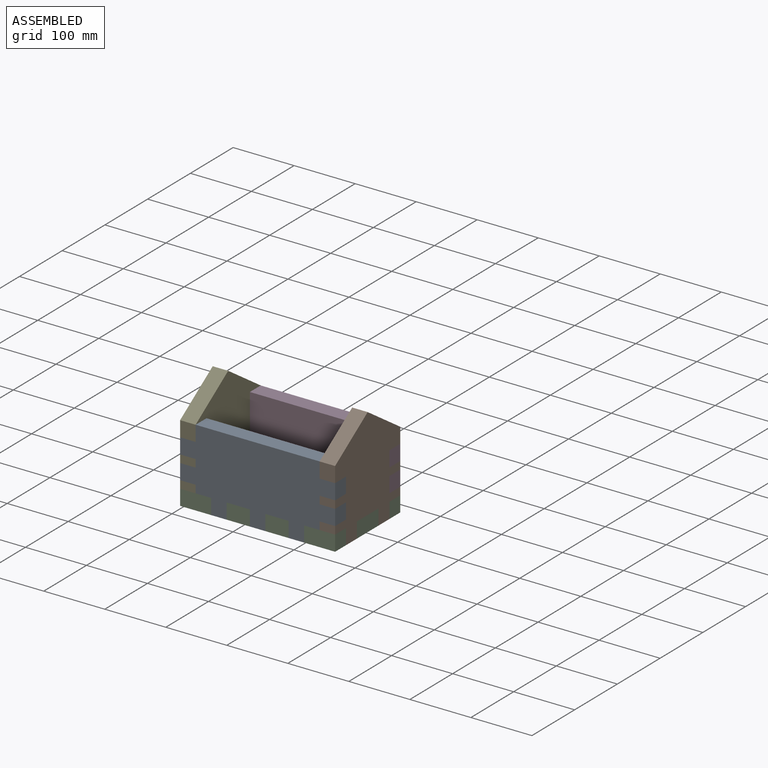
[diagram: assembled view]
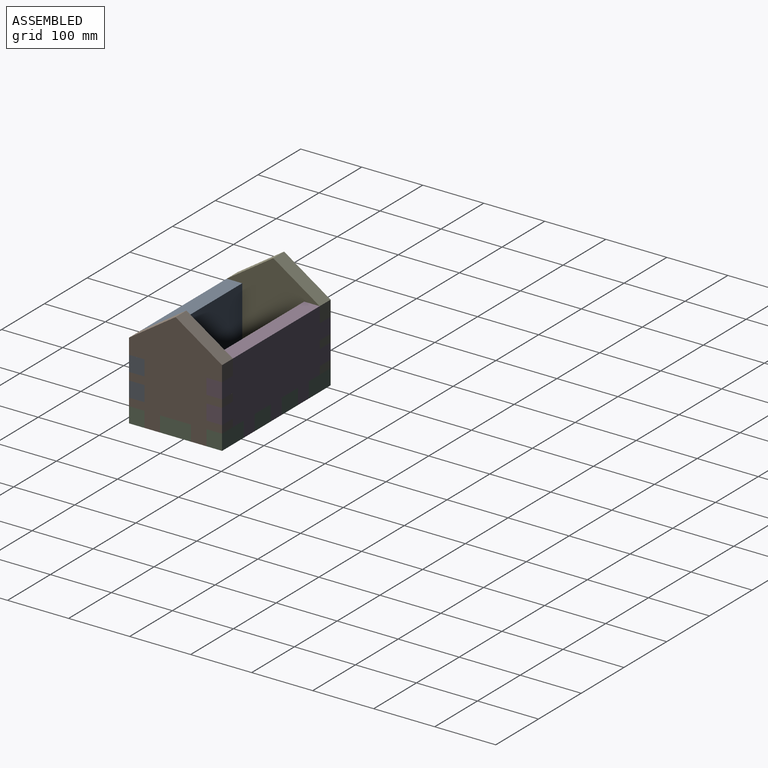
[diagram: assembled view, second angle]
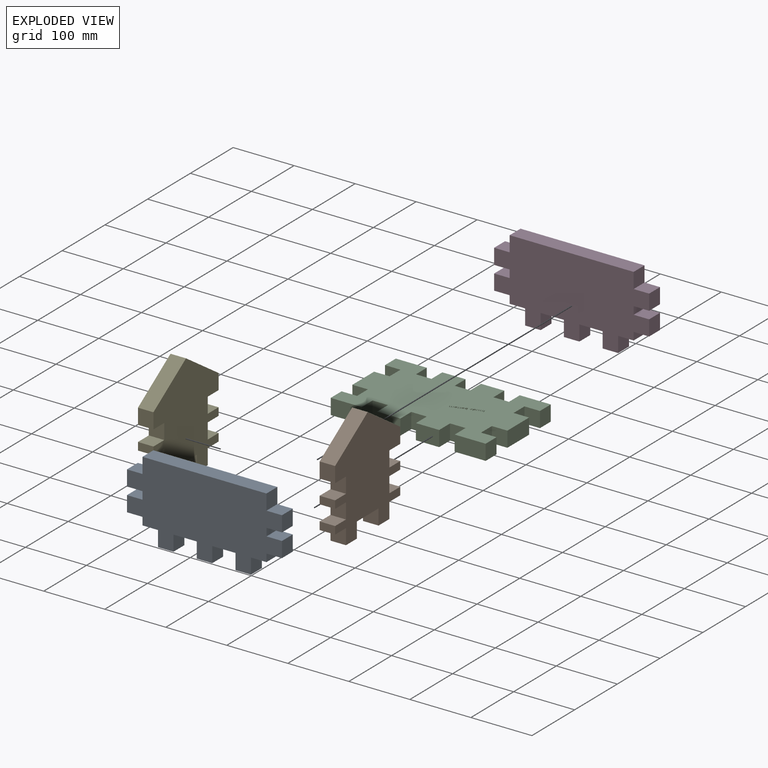
[diagram: exploded view]
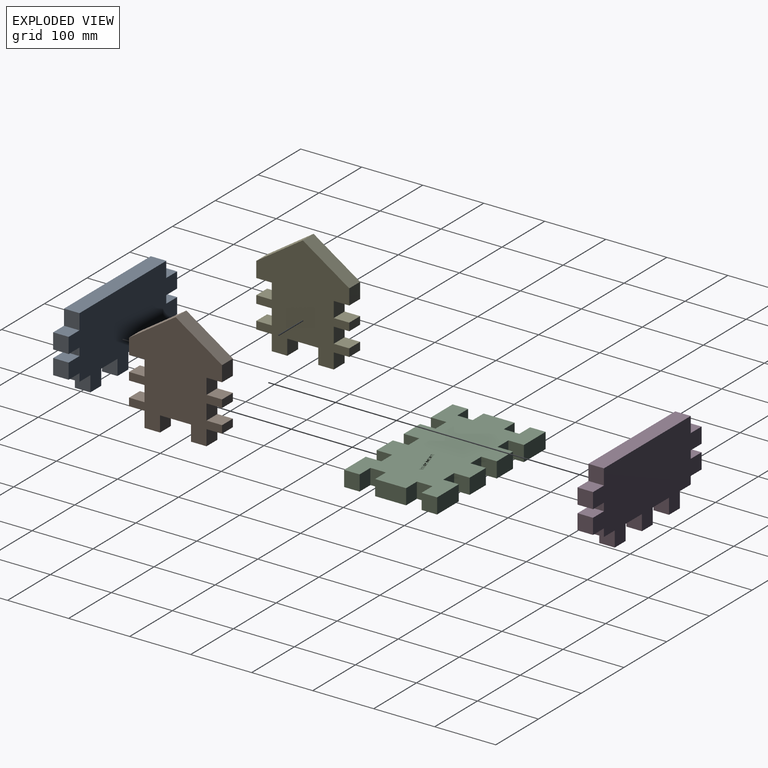
[diagram: exploded view, second angle]
ASSEMBLY  parts=5 mates=4
PART A: 34 faces, bbox 254x25.4x127 mm
  f0: plane 25.4x25.4mm, normal (-1,0,0), area 645.2mm2, adj f1,f31,f32,f33
  f1: plane 25.4x25.4mm, normal (0,0,1), area 645.2mm2, adj f0,f2,f32,f33
  f2: plane 25.4x25.4mm, normal (-1,0,0), area 645.2mm2, adj f1,f3,f32,f33
  f3: plane 25.4x25.4mm, normal (0,0,-1), area 645.2mm2, adj f2,f4,f32,f33
  f4: plane 25.4x12.7mm, normal (-1,0,0), area 322.6mm2, adj f3,f5,f32,f33
  f5: plane 25.4x25.4mm, normal (0,0,1), area 645.2mm2, adj f4,f6,f32,f33
  f6: plane 25.4x25.4mm, normal (-1,0,0), area 645.2mm2, adj f5,f7,f32,f33
  f7: plane 25.4x25.4mm, normal (0,0,-1), area 645.2mm2, adj f6,f8,f32,f33
  f8: plane 25.4x12.7mm, normal (-1,0,0), area 322.6mm2, adj f7,f9,f32,f33
  f9: plane 25.4x25.4mm, normal (0,0,-1), area 645.2mm2, adj f8,f10,f32,f33
  f10: plane 25.4x25.4mm, normal (-1,0,0), area 645.2mm2, adj f9,f11,f32,f33
  f11: plane 25.4x25.4mm, normal (0,0,-1), area 645.2mm2, adj f10,f12,f32,f33
  f12: plane 25.4x25.4mm, normal (1,0,0), area 645.2mm2, adj f11,f13,f32,f33
  f13: plane 38.1x25.4mm, normal (0,0,-1), area 967.7mm2, adj f12,f14,f32,f33
  f14: plane 25.4x25.4mm, normal (-1,0,0), area 645.2mm2, adj f13,f15,f32,f33
  f15: plane 25.4x25.4mm, normal (0,0,-1), area 645.2mm2, adj f14,f16,f32,f33
  f16: plane 25.4x25.4mm, normal (1,0,0), area 645.2mm2, adj f15,f17,f32,f33
  f17: plane 38.1x25.4mm, normal (0,0,-1), area 967.7mm2, adj f16,f18,f32,f33
  f18: plane 25.4x25.4mm, normal (-1,0,0), area 645.2mm2, adj f17,f19,f32,f33
  f19: plane 25.4x25.4mm, normal (0,0,-1), area 645.2mm2, adj f18,f20,f32,f33
  f20: plane 25.4x25.4mm, normal (1,0,0), area 645.2mm2, adj f19,f21,f32,f33
  f21: plane 25.4x25.4mm, normal (0,0,-1), area 645.2mm2, adj f20,f22,f32,f33
  f22: plane 25.4x12.7mm, normal (1,0,0), area 322.6mm2, adj f21,f23,f32,f33
  f23: plane 25.4x25.4mm, normal (0,0,-1), area 645.2mm2, adj f22,f24,f32,f33
  f24: plane 25.4x25.4mm, normal (1,0,0), area 645.2mm2, adj f23,f25,f32,f33
  f25: plane 25.4x25.4mm, normal (0,0,1), area 645.2mm2, adj f24,f26,f32,f33
  f26: plane 25.4x12.7mm, normal (1,0,0), area 322.6mm2, adj f25,f27,f32,f33
  f27: plane 25.4x25.4mm, normal (0,0,-1), area 645.2mm2, adj f26,f28,f32,f33
  f28: plane 25.4x25.4mm, normal (1,0,0), area 645.2mm2, adj f27,f29,f32,f33
  f29: plane 25.4x25.4mm, normal (0,0,1), area 645.2mm2, adj f28,f30,f32,f33
  f30: plane 25.4x25.4mm, normal (1,0,0), area 645.2mm2, adj f29,f31,f32,f33
  f31: plane 203.2x25.4mm, normal (0,0,1), area 5161.3mm2, adj f0,f30,f32,f33
  f32: plane 254x127mm, normal (0,-1,0), area 25161.2mm2, adj f0,f1,f2,f3,f4,f5,f6,f7
  f33: plane 254x127mm, normal (0,1,0), area 25161.2mm2, adj f0,f1,f2,f3,f4,f5,f6,f7
PART B: 31 faces, bbox 25.4x152.4x177.8 mm
  f0: plane 25.4x25.4mm, normal (0,0,-1), area 645.2mm2, adj f1,f28,f29,f30
  f1: plane 25.4x25.4mm, normal (0,-1,0), area 645.2mm2, adj f0,f2,f29,f30
  f2: plane 50.8x25.4mm, normal (0,0,-1), area 1290.3mm2, adj f1,f3,f29,f30
  f3: plane 25.4x25.4mm, normal (0,1,0), area 645.2mm2, adj f2,f4,f29,f30
  f4: plane 25.4x25.4mm, normal (0,0,-1), area 645.2mm2, adj f3,f5,f29,f30
  f5: plane 25.4x25.4mm, normal (0,-1,0), area 645.2mm2, adj f4,f6,f29,f30
  f6: plane 25.4x25.4mm, normal (0,0,-1), area 645.2mm2, adj f5,f7,f29,f30
  f7: plane 25.4x12.7mm, normal (0,-1,0), area 322.6mm2, adj f6,f8,f29,f30
  f8: plane 25.4x25.4mm, normal (0,0,1), area 645.2mm2, adj f7,f9,f29,f30
  f9: plane 25.4x25.4mm, normal (0,-1,0), area 645.2mm2, adj f8,f10,f29,f30
  f10: plane 25.4x25.4mm, normal (0,0,-1), area 645.2mm2, adj f9,f11,f29,f30
  f11: plane 25.4x12.7mm, normal (0,-1,0), area 322.6mm2, adj f10,f12,f29,f30
  f12: plane 25.4x25.4mm, normal (0,0,1), area 645.2mm2, adj f11,f13,f29,f30
  f13: plane 25.4x25.4mm, normal (0,-1,0), area 645.2mm2, adj f12,f14,f29,f30
  f14: plane 25.4x25.4mm, normal (0,0,-1), area 645.2mm2, adj f13,f15,f29,f30
  f15: plane 25.4x25.4mm, normal (0,-1,0), area 645.2mm2, adj f14,f16,f29,f30
  f16: plane 76.2x50.8mm, normal (0,-0.55,0.83), area 2326.2mm2, adj f15,f17,f29,f30
  f17: plane 76.2x50.8mm, normal (0,0.55,0.83), area 2326.2mm2, adj f16,f18,f29,f30
  f18: plane 25.4x25.4mm, normal (0,1,0), area 645.2mm2, adj f17,f19,f29,f30
  f19: plane 25.4x25.4mm, normal (0,0,-1), area 645.2mm2, adj f18,f20,f29,f30
  f20: plane 25.4x25.4mm, normal (0,1,0), area 645.2mm2, adj f19,f21,f29,f30
  f21: plane 25.4x25.4mm, normal (0,0,1), area 645.2mm2, adj f20,f22,f29,f30
  f22: plane 25.4x12.7mm, normal (0,1,0), area 322.6mm2, adj f21,f23,f29,f30
  f23: plane 25.4x25.4mm, normal (0,0,-1), area 645.2mm2, adj f22,f24,f29,f30
  f24: plane 25.4x25.4mm, normal (0,1,0), area 645.2mm2, adj f23,f25,f29,f30
  f25: plane 25.4x25.4mm, normal (0,0,1), area 645.2mm2, adj f24,f26,f29,f30
  f26: plane 25.4x12.7mm, normal (0,1,0), area 322.6mm2, adj f25,f27,f29,f30
  f27: plane 25.4x25.4mm, normal (0,0,-1), area 645.2mm2, adj f26,f28,f29,f30
  f28: plane 25.4x25.4mm, normal (0,1,0), area 645.2mm2, adj f0,f27,f29,f30
  f29: plane 177.8x152.4mm, normal (-1,0,0), area 18064.5mm2, adj f0,f1,f2,f3,f4,f5,f6,f7
  f30: plane 177.8x152.4mm, normal (1,0,0), area 18064.5mm2, adj f0,f1,f2,f3,f4,f5,f6,f7
PART C: 232 faces, bbox 254x152.4x25.4 mm
  f0: extruded ~25.4x0.67mm, area 18.5mm2, adj f1,f229,f230,f231
  f1: extruded ~25.4x1.57mm, area 41.1mm2, adj f0,f2,f230,f231
  f2: extruded ~25.4x1.33mm, area 43.2mm2, adj f1,f3,f230,f231
  f3: extruded ~25.4x1.68mm, area 43.7mm2, adj f2,f4,f230,f231
  f4: extruded ~25.4x1.09mm, area 38.5mm2, adj f3,f5,f230,f231
  f5: extruded ~25.4x1.34mm, area 35.3mm2, adj f4,f6,f230,f231
  f6: extruded ~25.4x1.16mm, area 37.4mm2, adj f5,f7,f230,f231
  f7: plane 25.4x0.38mm, normal (0.95,0.31,0), area 10.2mm2, adj f6,f8,f230,f231
  f8: plane 25.4x2.74mm, normal (0.31,-0.95,0), area 73.2mm2, adj f7,f9,f230,f231
  f9: extruded ~25.4x0.95mm, area 30.6mm2, adj f8,f10,f230,f231
  f10: extruded ~25.4x1.06mm, area 27.9mm2, adj f9,f11,f230,f231
  f11: extruded ~25.4x1.18mm, area 34.9mm2, adj f10,f12,f230,f231
  f12: plane 25.4x0.54mm, normal (0.95,0.31,0), area 14.4mm2, adj f11,f229,f230,f231
  f13: extruded ~25.4x1.35mm, area 43.2mm2, adj f14,f216,f230,f231
  f14: extruded ~25.4x1.68mm, area 43.6mm2, adj f13,f15,f230,f231
  f15: extruded ~25.4x1.18mm, area 40.3mm2, adj f14,f16,f230,f231
  f16: extruded ~25.4x1.03mm, area 26.5mm2, adj f15,f17,f230,f231
  f17: extruded ~25.4x0.87mm, area 26.1mm2, adj f16,f18,f230,f231
  f18: extruded ~25.4x1.03mm, area 30.2mm2, adj f17,f19,f230,f231
  f19: extruded ~25.4x1.67mm, area 43.5mm2, adj f18,f20,f230,f231
  f20: extruded ~25.4x1.18mm, area 40.1mm2, adj f19,f216,f230,f231
  f21: plane 25.4x0.6mm, normal (0.31,-0.95,0), area 16.1mm2, adj f22,f217,f230,f231
  f22: plane 25.4x2.59mm, normal (-0.95,-0.31,0), area 69.1mm2, adj f21,f23,f230,f231
  f23: extruded ~25.4x0.65mm, area 20.2mm2, adj f22,f24,f230,f231
  f24: extruded ~25.4x0.71mm, area 18.6mm2, adj f23,f25,f230,f231
  f25: extruded ~25.4x0.73mm, area 24.6mm2, adj f24,f26,f230,f231
  f26: extruded ~25.4x1.08mm, area 28.1mm2, adj f25,f27,f230,f231
  f27: plane 25.4x2.23mm, normal (0.95,0.31,0), area 59.4mm2, adj f26,f28,f230,f231
  f28: plane 25.4x0.6mm, normal (0.31,-0.95,0), area 16.1mm2, adj f27,f29,f230,f231
  f29: plane 25.4x2.59mm, normal (-0.95,-0.31,0), area 69.1mm2, adj f28,f30,f230,f231
  f30: extruded ~25.4x0.65mm, area 20.2mm2, adj f29,f31,f230,f231
  f31: extruded ~25.4x0.71mm, area 18.7mm2, adj f30,f32,f230,f231
  f32: extruded ~25.4x0.72mm, area 24.8mm2, adj f31,f33,f230,f231
  f33: extruded ~25.4x1.2mm, area 31.1mm2, adj f32,f34,f230,f231
  f34: plane 25.4x2.09mm, normal (0.95,0.31,0), area 55.8mm2, adj f33,f35,f230,f231
  f35: plane 25.4x0.6mm, normal (0.31,-0.95,0), area 16.1mm2, adj f34,f36,f230,f231
  f36: plane 25.4x3.98mm, normal (-0.95,-0.31,0), area 106.3mm2, adj f35,f37,f230,f231
  f37: plane 25.4x0.49mm, normal (-0.31,0.95,0), area 13.1mm2, adj f36,f38,f230,f231
  f38: plane 25.4x0.51mm, normal (0.88,0.47,0), area 14.8mm2, adj f37,f39,f230,f231
  f39: plane 25.4x0.03mm, normal (-0.31,0.95,0), area 0.8mm2, adj f38,f40,f230,f231
  f40: extruded ~25.4x0.61mm, area 17.9mm2, adj f39,f41,f230,f231
  f41: extruded ~25.4x0.64mm, area 19.3mm2, adj f40,f42,f230,f231
  f42: extruded ~25.4x1.44mm, area 39.8mm2, adj f41,f43,f230,f231
  f43: plane 25.4x0.03mm, normal (-0.31,0.95,0), area 0.8mm2, adj f42,f44,f230,f231
  f44: extruded ~25.4x0.66mm, area 19.3mm2, adj f43,f45,f230,f231
  f45: extruded ~25.4x0.71mm, area 21.3mm2, adj f44,f46,f230,f231
  f46: extruded ~25.4x1.12mm, area 29.3mm2, adj f45,f47,f230,f231
  f47: extruded ~25.4x1mm, area 31.7mm2, adj f46,f217,f230,f231
  f48: extruded ~25.4x1.35mm, area 43.2mm2, adj f49,f218,f230,f231
  f49: extruded ~25.4x1.68mm, area 43.6mm2, adj f48,f50,f230,f231
  f50: extruded ~25.4x1.18mm, area 40.3mm2, adj f49,f51,f230,f231
  f51: extruded ~25.4x1.03mm, area 26.5mm2, adj f50,f52,f230,f231
  f52: extruded ~25.4x0.87mm, area 26.1mm2, adj f51,f53,f230,f231
  f53: extruded ~25.4x1.03mm, area 30.2mm2, adj f52,f54,f230,f231
  f54: extruded ~25.4x1.67mm, area 43.5mm2, adj f53,f55,f230,f231
  f55: extruded ~25.4x1.18mm, area 40.1mm2, adj f54,f218,f230,f231
  f56: extruded ~25.4x0.53mm, area 14mm2, adj f57,f219,f230,f231
  f57: extruded ~25.4x0.3mm, area 8.3mm2, adj f56,f58,f230,f231
  f58: extruded ~25.4x0.22mm, area 6.4mm2, adj f57,f59,f230,f231
  f59: plane 25.4x0.46mm, normal (0.95,0.31,0), area 12.3mm2, adj f58,f60,f230,f231
  f60: extruded ~25.4x0.26mm, area 8mm2, adj f59,f61,f230,f231
  f61: extruded ~25.4x0.33mm, area 9.2mm2, adj f60,f62,f230,f231
  f62: extruded ~25.4x1.55mm, area 51.4mm2, adj f61,f63,f230,f231
  f63: plane 25.4x2.37mm, normal (-0.95,-0.31,0), area 63.2mm2, adj f62,f64,f230,f231
  f64: plane 25.4x0.57mm, normal (0.31,-0.95,0), area 15.2mm2, adj f63,f65,f230,f231
  f65: plane 25.4x0.29mm, normal (-0.95,-0.31,0), area 7.8mm2, adj f64,f66,f230,f231
  f66: plane 25.4x0.49mm, normal (-0.66,0.75,0), area 16.6mm2, adj f65,f67,f230,f231
  f67: plane 25.4x0.93mm, normal (-1,-0.02,0), area 23.7mm2, adj f66,f68,f230,f231
  f68: plane 25.4x0.35mm, normal (-0.31,0.95,0), area 9.3mm2, adj f67,f69,f230,f231
  f69: plane 25.4x0.92mm, normal (0.95,0.31,0), area 24.6mm2, adj f68,f70,f230,f231
  f70: plane 25.4x1.16mm, normal (-0.31,0.95,0), area 30.8mm2, adj f69,f71,f230,f231
  f71: plane 25.4x0.47mm, normal (0.95,0.31,0), area 12.5mm2, adj f70,f72,f230,f231
  f72: plane 25.4x1.16mm, normal (0.31,-0.95,0), area 30.8mm2, adj f71,f73,f230,f231
  f73: plane 25.4x2.34mm, normal (0.95,0.31,0), area 62.6mm2, adj f72,f219,f230,f231
  f74: extruded ~25.4x0.53mm, area 14mm2, adj f75,f220,f230,f231
  f75: extruded ~25.4x0.3mm, area 8.3mm2, adj f74,f76,f230,f231
  f76: extruded ~25.4x0.22mm, area 6.4mm2, adj f75,f77,f230,f231
  f77: plane 25.4x0.46mm, normal (0.95,0.31,0), area 12.3mm2, adj f76,f78,f230,f231
  f78: extruded ~25.4x0.26mm, area 8mm2, adj f77,f79,f230,f231
  f79: extruded ~25.4x0.33mm, area 9.2mm2, adj f78,f80,f230,f231
  f80: extruded ~25.4x1.55mm, area 51.4mm2, adj f79,f81,f230,f231
  f81: plane 25.4x2.37mm, normal (-0.95,-0.31,0), area 63.2mm2, adj f80,f82,f230,f231
  f82: plane 25.4x0.57mm, normal (0.31,-0.95,0), area 15.2mm2, adj f81,f83,f230,f231
  f83: plane 25.4x0.29mm, normal (-0.95,-0.31,0), area 7.8mm2, adj f82,f84,f230,f231
  f84: plane 25.4x0.49mm, normal (-0.66,0.75,0), area 16.6mm2, adj f83,f85,f230,f231
  f85: plane 25.4x0.93mm, normal (-1,-0.02,0), area 23.7mm2, adj f84,f86,f230,f231
  f86: plane 25.4x0.35mm, normal (-0.31,0.95,0), area 9.3mm2, adj f85,f87,f230,f231
  f87: plane 25.4x0.92mm, normal (0.95,0.31,0), area 24.6mm2, adj f86,f88,f230,f231
  f88: plane 25.4x1.16mm, normal (-0.31,0.95,0), area 30.8mm2, adj f87,f89,f230,f231
  f89: plane 25.4x0.47mm, normal (0.95,0.31,0), area 12.5mm2, adj f88,f90,f230,f231
  f90: plane 25.4x1.16mm, normal (0.31,-0.95,0), area 30.8mm2, adj f89,f91,f230,f231
  f91: plane 25.4x2.34mm, normal (0.95,0.31,0), area 62.6mm2, adj f90,f220,f230,f231
  f92: extruded ~25.4x1.06mm, area 38.5mm2, adj f93,f221,f230,f231
  f93: extruded ~25.4x1.39mm, area 36.8mm2, adj f92,f94,f230,f231
  f94: extruded ~25.4x1.38mm, area 42.9mm2, adj f93,f95,f230,f231
  f95: extruded ~25.4x1.67mm, area 43.2mm2, adj f94,f96,f230,f231
  f96: extruded ~25.4x1.04mm, area 36.8mm2, adj f95,f97,f230,f231
  f97: extruded ~25.4x0.76mm, area 19.5mm2, adj f96,f98,f230,f231
  f98: extruded ~25.4x0.68mm, area 18.8mm2, adj f97,f99,f230,f231
  f99: plane 25.4x0.04mm, normal (0.31,-0.95,0), area 1.2mm2, adj f98,f100,f230,f231
  f100: plane 25.4x0.55mm, normal (1,0.07,0), area 14.1mm2, adj f99,f101,f230,f231
  f101: plane 25.4x0.43mm, normal (0.31,-0.95,0), area 11.5mm2, adj f100,f102,f230,f231
  f102: plane 25.4x5.66mm, normal (-0.95,-0.31,0), area 150.9mm2, adj f101,f103,f230,f231
  f103: plane 25.4x0.6mm, normal (-0.31,0.95,0), area 16.1mm2, adj f102,f104,f230,f231
  f104: plane 25.4x1.37mm, normal (0.95,0.31,0), area 36.7mm2, adj f103,f105,f230,f231
  f105: extruded ~25.4x0.84mm, area 22.1mm2, adj f104,f221,f230,f231
  f106: plane 25.4x0.51mm, normal (-0.9,-0.44,0), area 14.4mm2, adj f107,f222,f230,f231
  f107: plane 25.4x0.03mm, normal (0.31,-0.95,0), area 0.9mm2, adj f106,f108,f230,f231
  f108: extruded ~25.4x1.06mm, area 38.7mm2, adj f107,f109,f230,f231
  f109: extruded ~25.4x1.39mm, area 36.7mm2, adj f108,f110,f230,f231
  f110: extruded ~25.4x1.38mm, area 43mm2, adj f109,f111,f230,f231
  f111: extruded ~25.4x1.67mm, area 43.3mm2, adj f110,f112,f230,f231
  f112: extruded ~25.4x1.04mm, area 36.8mm2, adj f111,f113,f230,f231
  f113: extruded ~25.4x1.43mm, area 38.2mm2, adj f112,f114,f230,f231
  f114: plane 25.4x0.05mm, normal (-0.31,0.95,0), area 1.3mm2, adj f113,f115,f230,f231
  f115: plane 25.4x0.28mm, normal (-0.92,-0.39,0), area 7.7mm2, adj f114,f116,f230,f231
  f116: plane 25.4x0.28mm, normal (-0.93,-0.36,0), area 7.5mm2, adj f115,f117,f230,f231
  f117: plane 25.4x1.62mm, normal (-0.95,-0.31,0), area 43.3mm2, adj f116,f118,f230,f231
  f118: plane 25.4x0.6mm, normal (-0.31,0.95,0), area 16.1mm2, adj f117,f119,f230,f231
  f119: plane 25.4x5.66mm, normal (0.95,0.31,0), area 150.9mm2, adj f118,f222,f230,f231
  f120: extruded ~25.4x0.27mm, area 8.8mm2, adj f121,f223,f230,f231
  f121: extruded ~25.4x0.34mm, area 8.8mm2, adj f120,f122,f230,f231
  f122: extruded ~25.4x0.22mm, area 7.5mm2, adj f121,f123,f230,f231
  f123: extruded ~25.4x0.28mm, area 7.4mm2, adj f122,f124,f230,f231
  f124: extruded ~25.4x0.27mm, area 8.8mm2, adj f123,f125,f230,f231
  f125: extruded ~25.4x0.34mm, area 8.8mm2, adj f124,f126,f230,f231
  f126: extruded ~25.4x0.22mm, area 7.4mm2, adj f125,f223,f230,f231
  f127: plane 25.4x3.98mm, normal (0.95,0.31,0), area 106.3mm2, adj f128,f224,f230,f231
  f128: plane 25.4x0.6mm, normal (0.31,-0.95,0), area 16.1mm2, adj f127,f129,f230,f231
  f129: plane 25.4x3.98mm, normal (-0.95,-0.31,0), area 106.3mm2, adj f128,f224,f230,f231
  f130: extruded ~25.4x0.58mm, area 19.3mm2, adj f131,f225,f230,f231
  f131: extruded ~25.4x0.99mm, area 26.5mm2, adj f130,f132,f230,f231
  f132: extruded ~25.4x1.07mm, area 32.6mm2, adj f131,f133,f230,f231
  f133: extruded ~25.4x1.32mm, area 34mm2, adj f132,f134,f230,f231
  f134: plane 25.4x0.56mm, normal (-0.95,-0.31,0), area 14.9mm2, adj f133,f135,f230,f231
  f135: extruded ~25.4x0.69mm, area 17.6mm2, adj f134,f136,f230,f231
  f136: extruded ~25.4x0.66mm, area 17.1mm2, adj f135,f137,f230,f231
  f137: extruded ~25.4x0.68mm, area 20mm2, adj f136,f138,f230,f231
  f138: extruded ~25.4x0.54mm, area 14.7mm2, adj f137,f139,f230,f231
  f139: extruded ~25.4x0.33mm, area 12.3mm2, adj f138,f140,f230,f231
  f140: extruded ~25.4x0.91mm, area 23.5mm2, adj f139,f141,f230,f231
  f141: extruded ~25.4x0.91mm, area 23.2mm2, adj f140,f142,f230,f231
  f142: extruded ~25.4x0.46mm, area 13.3mm2, adj f141,f143,f230,f231
  f143: extruded ~25.4x0.43mm, area 13mm2, adj f142,f144,f230,f231
  f144: extruded ~25.4x0.9mm, area 24.1mm2, adj f143,f145,f230,f231
  f145: extruded ~25.4x1mm, area 30.4mm2, adj f144,f146,f230,f231
  f146: extruded ~25.4x1.34mm, area 34.5mm2, adj f145,f147,f230,f231
  f147: plane 25.4x0.56mm, normal (0.99,-0.1,0), area 14.3mm2, adj f146,f148,f230,f231
  f148: extruded ~25.4x1.17mm, area 29.9mm2, adj f147,f149,f230,f231
  f149: extruded ~25.4x0.6mm, area 17.8mm2, adj f148,f150,f230,f231
  f150: extruded ~25.4x0.44mm, area 12mm2, adj f149,f151,f230,f231
  f151: extruded ~25.4x0.25mm, area 7.7mm2, adj f150,f152,f230,f231
  f152: extruded ~25.4x0.33mm, area 9.1mm2, adj f151,f153,f230,f231
  f153: extruded ~25.4x0.79mm, area 20.2mm2, adj f152,f225,f230,f231
  f154: plane 25.4x0.6mm, normal (0.31,-0.95,0), area 16.1mm2, adj f155,f226,f230,f231
  f155: plane 25.4x2.58mm, normal (-0.95,-0.31,0), area 68.8mm2, adj f154,f156,f230,f231
  f156: extruded ~25.4x0.66mm, area 20.7mm2, adj f155,f157,f230,f231
  f157: extruded ~25.4x0.77mm, area 20.2mm2, adj f156,f158,f230,f231
  f158: extruded ~25.4x0.81mm, area 26.9mm2, adj f157,f159,f230,f231
  f159: extruded ~25.4x1.21mm, area 31.4mm2, adj f158,f160,f230,f231
  f160: plane 25.4x2.09mm, normal (0.95,0.31,0), area 55.8mm2, adj f159,f161,f230,f231
  f161: plane 25.4x0.6mm, normal (0.31,-0.95,0), area 16.1mm2, adj f160,f162,f230,f231
  f162: plane 25.4x3.98mm, normal (-0.95,-0.31,0), area 106.3mm2, adj f161,f163,f230,f231
  f163: plane 25.4x0.49mm, normal (-0.31,0.95,0), area 13.1mm2, adj f162,f164,f230,f231
  f164: plane 25.4x0.51mm, normal (0.88,0.47,0), area 14.8mm2, adj f163,f165,f230,f231
  f165: plane 25.4x0.03mm, normal (-0.31,0.95,0), area 0.8mm2, adj f164,f166,f230,f231
  f166: extruded ~25.4x0.62mm, area 18.7mm2, adj f165,f167,f230,f231
  f167: extruded ~25.4x0.69mm, area 20.5mm2, adj f166,f168,f230,f231
  f168: extruded ~25.4x1.2mm, area 31.1mm2, adj f167,f169,f230,f231
  f169: extruded ~25.4x0.99mm, area 32.1mm2, adj f168,f226,f230,f231
  f170: plane 25.4x0.62mm, normal (0.31,-0.95,0), area 16.5mm2, adj f171,f227,f230,f231
  f171: plane 25.4x5.31mm, normal (-0.95,-0.31,0), area 141.8mm2, adj f170,f172,f230,f231
  f172: plane 25.4x0.62mm, normal (-0.31,0.95,0), area 16.5mm2, adj f171,f227,f230,f231
  f173: plane 25.4x25.4mm, normal (0,-1,0), area 645.2mm2, adj f174,f228,f230,f231
  f174: plane 25.4x25.4mm, normal (1,0,0), area 645.2mm2, adj f173,f175,f230,f231
  f175: plane 50.8x25.4mm, normal (0,1,0), area 1290.3mm2, adj f174,f176,f230,f231
  f176: plane 25.4x25.4mm, normal (-1,0,0), area 645.2mm2, adj f175,f177,f230,f231
  f177: plane 25.4x25.4mm, normal (0,1,0), area 645.2mm2, adj f176,f178,f230,f231
  f178: plane 25.4x25.4mm, normal (1,0,0), area 645.2mm2, adj f177,f179,f230,f231
  f179: plane 38.1x25.4mm, normal (0,1,0), area 967.7mm2, adj f178,f180,f230,f231
  f180: plane 25.4x25.4mm, normal (-1,0,0), area 645.2mm2, adj f179,f181,f230,f231
  f181: plane 25.4x25.4mm, normal (0,1,0), area 645.2mm2, adj f180,f182,f230,f231
  f182: plane 25.4x25.4mm, normal (1,0,0), area 645.2mm2, adj f181,f183,f230,f231
  f183: plane 38.1x25.4mm, normal (0,1,0), area 967.7mm2, adj f182,f184,f230,f231
  f184: plane 25.4x25.4mm, normal (-1,0,0), area 645.2mm2, adj f183,f185,f230,f231
  f185: plane 25.4x25.4mm, normal (0,1,0), area 645.2mm2, adj f184,f186,f230,f231
  f186: plane 25.4x25.4mm, normal (1,0,0), area 645.2mm2, adj f185,f187,f230,f231
  f187: plane 50.8x25.4mm, normal (0,1,0), area 1290.3mm2, adj f186,f188,f230,f231
  f188: plane 25.4x25.4mm, normal (-1,0,0), area 645.2mm2, adj f187,f189,f230,f231
  f189: plane 25.4x25.4mm, normal (0,-1,0), area 645.2mm2, adj f188,f190,f230,f231
  f190: plane 25.4x25.4mm, normal (-1,0,0), area 645.2mm2, adj f189,f191,f230,f231
  f191: plane 25.4x25.4mm, normal (0,1,0), area 645.2mm2, adj f190,f192,f230,f231
  f192: plane 50.8x25.4mm, normal (-1,0,0), area 1290.3mm2, adj f191,f193,f230,f231
  f193: plane 25.4x25.4mm, normal (0,-1,0), area 645.2mm2, adj f192,f194,f230,f231
  f194: plane 25.4x25.4mm, normal (-1,0,0), area 645.2mm2, adj f193,f195,f230,f231
  f195: plane 25.4x25.4mm, normal (0,1,0), area 645.2mm2, adj f194,f196,f230,f231
  f196: plane 25.4x25.4mm, normal (-1,0,0), area 645.2mm2, adj f195,f197,f230,f231
  f197: plane 50.8x25.4mm, normal (0,-1,0), area 1290.3mm2, adj f196,f198,f230,f231
  f198: plane 25.4x25.4mm, normal (1,0,0), area 645.2mm2, adj f197,f199,f230,f231
  f199: plane 25.4x25.4mm, normal (0,-1,0), area 645.2mm2, adj f198,f200,f230,f231
  f200: plane 25.4x25.4mm, normal (-1,0,0), area 645.2mm2, adj f199,f201,f230,f231
  f201: plane 38.1x25.4mm, normal (0,-1,0), area 967.7mm2, adj f200,f202,f230,f231
  f202: plane 25.4x25.4mm, normal (1,0,0), area 645.2mm2, adj f201,f203,f230,f231
  f203: plane 25.4x25.4mm, normal (0,-1,0), area 645.2mm2, adj f202,f204,f230,f231
  f204: plane 25.4x25.4mm, normal (-1,0,0), area 645.2mm2, adj f203,f205,f230,f231
  f205: plane 38.1x25.4mm, normal (0,-1,0), area 967.7mm2, adj f204,f206,f230,f231
  f206: plane 25.4x25.4mm, normal (1,0,0), area 645.2mm2, adj f205,f207,f230,f231
  f207: plane 25.4x25.4mm, normal (0,-1,0), area 645.2mm2, adj f206,f208,f230,f231
  f208: plane 25.4x25.4mm, normal (-1,0,0), area 645.2mm2, adj f207,f209,f230,f231
  f209: plane 50.8x25.4mm, normal (0,-1,0), area 1290.3mm2, adj f208,f210,f230,f231
  f210: plane 25.4x25.4mm, normal (1,0,0), area 645.2mm2, adj f209,f211,f230,f231
  f211: plane 25.4x25.4mm, normal (0,1,0), area 645.2mm2, adj f210,f212,f230,f231
  f212: plane 25.4x25.4mm, normal (1,0,0), area 645.2mm2, adj f211,f213,f230,f231
  f213: plane 25.4x25.4mm, normal (0,-1,0), area 645.2mm2, adj f212,f214,f230,f231
  f214: plane 50.8x25.4mm, normal (1,0,0), area 1290.3mm2, adj f213,f215,f230,f231
  f215: plane 25.4x25.4mm, normal (0,1,0), area 645.2mm2, adj f214,f228,f230,f231
  f216: extruded ~25.4x1.51mm, area 39.7mm2, adj f13,f20,f230,f231
  f217: plane 25.4x2.6mm, normal (0.95,0.31,0), area 69.3mm2, adj f21,f47,f230,f231
  f218: extruded ~25.4x1.51mm, area 39.7mm2, adj f48,f55,f230,f231
  f219: extruded ~25.4x0.5mm, area 15.8mm2, adj f56,f73,f230,f231
  f220: extruded ~25.4x0.5mm, area 15.8mm2, adj f74,f91,f230,f231
  f221: plane 25.4x0.03mm, normal (-0.31,0.95,0), area 0.8mm2, adj f92,f105,f230,f231
  f222: plane 25.4x0.49mm, normal (0.31,-0.95,0), area 13.1mm2, adj f106,f119,f230,f231
  f223: extruded ~25.4x0.29mm, area 7.5mm2, adj f120,f126,f230,f231
  f224: plane 25.4x0.6mm, normal (-0.31,0.95,0), area 16.1mm2, adj f127,f129,f230,f231
  f225: extruded ~25.4x1.12mm, area 29.3mm2, adj f130,f153,f230,f231
  f226: plane 25.4x2.6mm, normal (0.95,0.31,0), area 69.3mm2, adj f154,f169,f230,f231
  f227: plane 25.4x5.31mm, normal (0.95,0.31,0), area 141.8mm2, adj f170,f172,f230,f231
  f228: plane 25.4x25.4mm, normal (1,0,0), area 645.2mm2, adj f173,f215,f230,f231
  f229: extruded ~25.4x0.54mm, area 17mm2, adj f0,f12,f230,f231
  f230: plane 254x152.4mm, normal (0,0,1), area 32153.9mm2, adj f0,f1,f2,f3,f4,f5,f6,f7
  f231: plane 254x152.4mm, normal (0,0,-1), area 32153.9mm2, adj f0,f1,f2,f3,f4,f5,f6,f7
PART D: 34 faces, bbox 254x25.4x127 mm
  f0: plane 25.4x25.4mm, normal (-1,0,0), area 645.2mm2, adj f1,f31,f32,f33
  f1: plane 25.4x25.4mm, normal (0,0,1), area 645.2mm2, adj f0,f2,f32,f33
  f2: plane 25.4x25.4mm, normal (-1,0,0), area 645.2mm2, adj f1,f3,f32,f33
  f3: plane 25.4x25.4mm, normal (0,0,-1), area 645.2mm2, adj f2,f4,f32,f33
  f4: plane 25.4x12.7mm, normal (-1,0,0), area 322.6mm2, adj f3,f5,f32,f33
  f5: plane 25.4x25.4mm, normal (0,0,1), area 645.2mm2, adj f4,f6,f32,f33
  f6: plane 25.4x25.4mm, normal (-1,0,0), area 645.2mm2, adj f5,f7,f32,f33
  f7: plane 25.4x25.4mm, normal (0,0,-1), area 645.2mm2, adj f6,f8,f32,f33
  f8: plane 25.4x12.7mm, normal (-1,0,0), area 322.6mm2, adj f7,f9,f32,f33
  f9: plane 25.4x25.4mm, normal (0,0,-1), area 645.2mm2, adj f8,f10,f32,f33
  f10: plane 25.4x25.4mm, normal (-1,0,0), area 645.2mm2, adj f9,f11,f32,f33
  f11: plane 25.4x25.4mm, normal (0,0,-1), area 645.2mm2, adj f10,f12,f32,f33
  f12: plane 25.4x25.4mm, normal (1,0,0), area 645.2mm2, adj f11,f13,f32,f33
  f13: plane 38.1x25.4mm, normal (0,0,-1), area 967.7mm2, adj f12,f14,f32,f33
  f14: plane 25.4x25.4mm, normal (-1,0,0), area 645.2mm2, adj f13,f15,f32,f33
  f15: plane 25.4x25.4mm, normal (0,0,-1), area 645.2mm2, adj f14,f16,f32,f33
  f16: plane 25.4x25.4mm, normal (1,0,0), area 645.2mm2, adj f15,f17,f32,f33
  f17: plane 38.1x25.4mm, normal (0,0,-1), area 967.7mm2, adj f16,f18,f32,f33
  f18: plane 25.4x25.4mm, normal (-1,0,0), area 645.2mm2, adj f17,f19,f32,f33
  f19: plane 25.4x25.4mm, normal (0,0,-1), area 645.2mm2, adj f18,f20,f32,f33
  f20: plane 25.4x25.4mm, normal (1,0,0), area 645.2mm2, adj f19,f21,f32,f33
  f21: plane 25.4x25.4mm, normal (0,0,-1), area 645.2mm2, adj f20,f22,f32,f33
  f22: plane 25.4x12.7mm, normal (1,0,0), area 322.6mm2, adj f21,f23,f32,f33
  f23: plane 25.4x25.4mm, normal (0,0,-1), area 645.2mm2, adj f22,f24,f32,f33
  f24: plane 25.4x25.4mm, normal (1,0,0), area 645.2mm2, adj f23,f25,f32,f33
  f25: plane 25.4x25.4mm, normal (0,0,1), area 645.2mm2, adj f24,f26,f32,f33
  f26: plane 25.4x12.7mm, normal (1,0,0), area 322.6mm2, adj f25,f27,f32,f33
  f27: plane 25.4x25.4mm, normal (0,0,-1), area 645.2mm2, adj f26,f28,f32,f33
  f28: plane 25.4x25.4mm, normal (1,0,0), area 645.2mm2, adj f27,f29,f32,f33
  f29: plane 25.4x25.4mm, normal (0,0,1), area 645.2mm2, adj f28,f30,f32,f33
  f30: plane 25.4x25.4mm, normal (1,0,0), area 645.2mm2, adj f29,f31,f32,f33
  f31: plane 203.2x25.4mm, normal (0,0,1), area 5161.3mm2, adj f0,f30,f32,f33
  f32: plane 254x127mm, normal (0,-1,0), area 25161.2mm2, adj f0,f1,f2,f3,f4,f5,f6,f7
  f33: plane 254x127mm, normal (0,1,0), area 25161.2mm2, adj f0,f1,f2,f3,f4,f5,f6,f7
PART E: 31 faces, bbox 25.4x152.4x177.8 mm
  f0: plane 25.4x25.4mm, normal (0,0,-1), area 645.2mm2, adj f1,f28,f29,f30
  f1: plane 25.4x25.4mm, normal (0,-1,0), area 645.2mm2, adj f0,f2,f29,f30
  f2: plane 50.8x25.4mm, normal (0,0,-1), area 1290.3mm2, adj f1,f3,f29,f30
  f3: plane 25.4x25.4mm, normal (0,1,0), area 645.2mm2, adj f2,f4,f29,f30
  f4: plane 25.4x25.4mm, normal (0,0,-1), area 645.2mm2, adj f3,f5,f29,f30
  f5: plane 25.4x25.4mm, normal (0,-1,0), area 645.2mm2, adj f4,f6,f29,f30
  f6: plane 25.4x25.4mm, normal (0,0,-1), area 645.2mm2, adj f5,f7,f29,f30
  f7: plane 25.4x12.7mm, normal (0,-1,0), area 322.6mm2, adj f6,f8,f29,f30
  f8: plane 25.4x25.4mm, normal (0,0,1), area 645.2mm2, adj f7,f9,f29,f30
  f9: plane 25.4x25.4mm, normal (0,-1,0), area 645.2mm2, adj f8,f10,f29,f30
  f10: plane 25.4x25.4mm, normal (0,0,-1), area 645.2mm2, adj f9,f11,f29,f30
  f11: plane 25.4x12.7mm, normal (0,-1,0), area 322.6mm2, adj f10,f12,f29,f30
  f12: plane 25.4x25.4mm, normal (0,0,1), area 645.2mm2, adj f11,f13,f29,f30
  f13: plane 25.4x25.4mm, normal (0,-1,0), area 645.2mm2, adj f12,f14,f29,f30
  f14: plane 25.4x25.4mm, normal (0,0,-1), area 645.2mm2, adj f13,f15,f29,f30
  f15: plane 25.4x25.4mm, normal (0,-1,0), area 645.2mm2, adj f14,f16,f29,f30
  f16: plane 76.2x50.8mm, normal (0,-0.55,0.83), area 2326.2mm2, adj f15,f17,f29,f30
  f17: plane 76.2x50.8mm, normal (0,0.55,0.83), area 2326.2mm2, adj f16,f18,f29,f30
  f18: plane 25.4x25.4mm, normal (0,1,0), area 645.2mm2, adj f17,f19,f29,f30
  f19: plane 25.4x25.4mm, normal (0,0,-1), area 645.2mm2, adj f18,f20,f29,f30
  f20: plane 25.4x25.4mm, normal (0,1,0), area 645.2mm2, adj f19,f21,f29,f30
  f21: plane 25.4x25.4mm, normal (0,0,1), area 645.2mm2, adj f20,f22,f29,f30
  f22: plane 25.4x12.7mm, normal (0,1,0), area 322.6mm2, adj f21,f23,f29,f30
  f23: plane 25.4x25.4mm, normal (0,0,-1), area 645.2mm2, adj f22,f24,f29,f30
  f24: plane 25.4x25.4mm, normal (0,1,0), area 645.2mm2, adj f23,f25,f29,f30
  f25: plane 25.4x25.4mm, normal (0,0,1), area 645.2mm2, adj f24,f26,f29,f30
  f26: plane 25.4x12.7mm, normal (0,1,0), area 322.6mm2, adj f25,f27,f29,f30
  f27: plane 25.4x25.4mm, normal (0,0,-1), area 645.2mm2, adj f26,f28,f29,f30
  f28: plane 25.4x25.4mm, normal (0,1,0), area 645.2mm2, adj f0,f27,f29,f30
  f29: plane 177.8x152.4mm, normal (-1,0,0), area 18064.5mm2, adj f0,f1,f2,f3,f4,f5,f6,f7
  f30: plane 177.8x152.4mm, normal (1,0,0), area 18064.5mm2, adj f0,f1,f2,f3,f4,f5,f6,f7
PLACE A t=(5.16,93.78,-33.68)mm
PLACE B t=(5.16,80.84,-33.68)mm
PLACE C t=(5.16,68.38,-33.68)mm fixed
PLACE D t=(5.16,93.78,-33.68)mm
PLACE E t=(30.56,80.84,-33.68)mm
MATE slider C.f212 <-> B.f29  axis (1,0,0) through (129.75,55.68,-33.68)mm
MATE slider C.f190 <-> E.f30  axis (-1,0,0) through (-73.45,131.88,-33.68)mm
MATE slider C.f181 <-> D.f32  axis (0,1,0) through (28.15,144.58,-33.68)mm
MATE slider A.f33 <-> C.f203  axis (0,1,0) through (28.15,42.98,-33.68)mm
